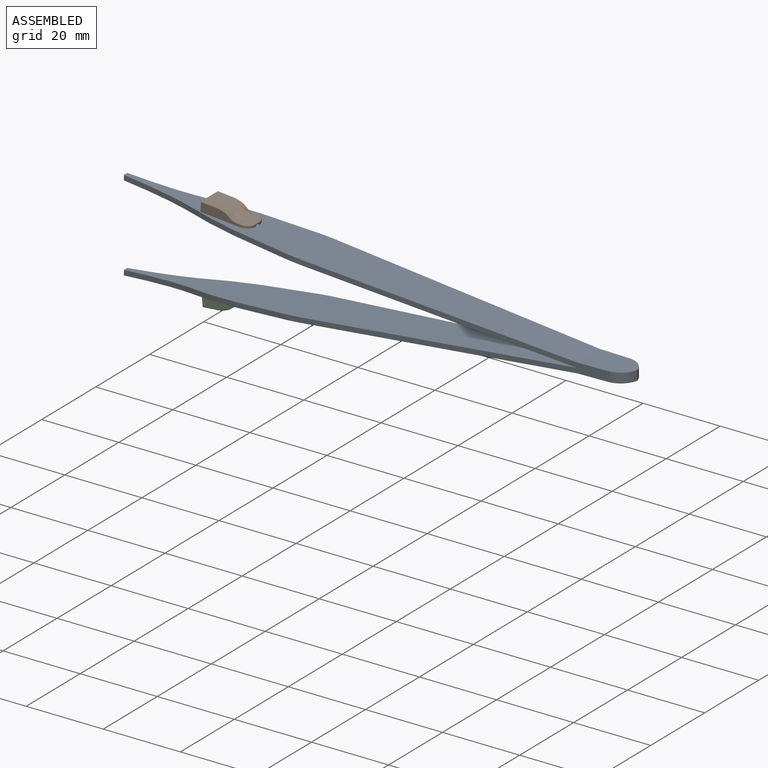
[diagram: assembled view]
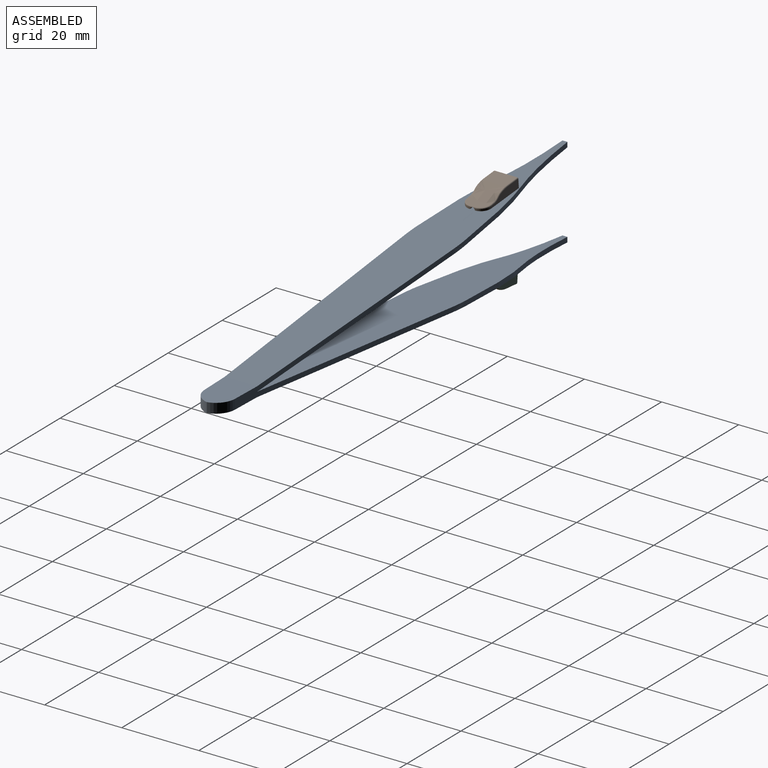
[diagram: assembled view, second angle]
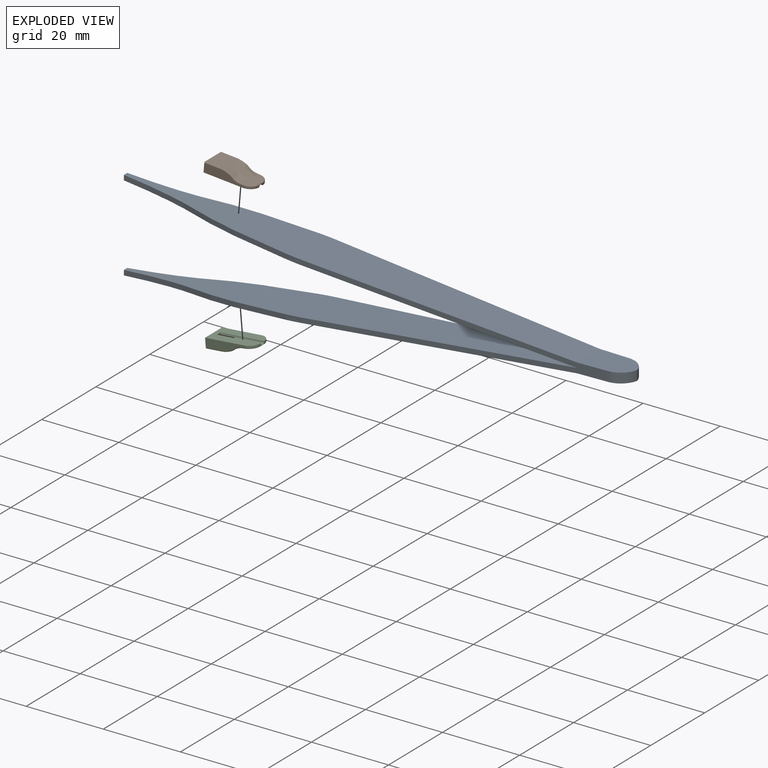
[diagram: exploded view]
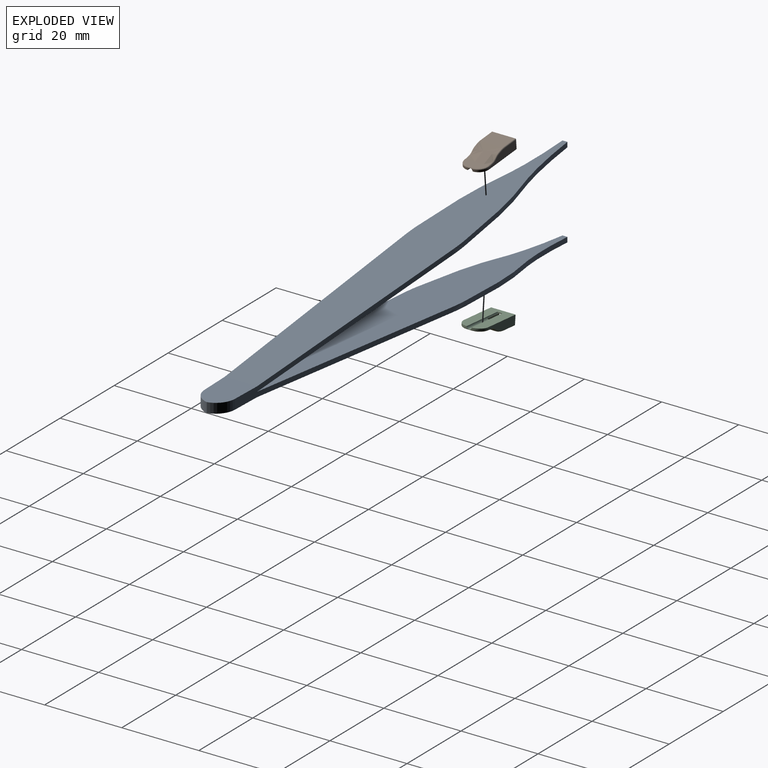
[diagram: exploded view, second angle]
ASSEMBLY  parts=3 mates=2
PART A: 20 faces, bbox 132.7x12.6x23.6 mm
  f0: plane 120.14x12.61mm, normal (0.09,0,1), area 1111.3mm2, adj f1,f4,f6,f7,f9,f11,f16,f17
  f1: plane 12.58x8.38mm, normal (0,0,1), area 91.4mm2, adj f0,f6,f11,f14,f15
  f2: plane 12.58x8.38mm, normal (0,0,-1), area 91.4mm2, adj f3,f6,f11,f14,f15
  f3: plane 120.14x12.61mm, normal (0.09,0,-1), area 1111.3mm2, adj f2,f5,f6,f8,f10,f11,f18,f19
  f4: plane 1.28x1.27mm, normal (-1,0,0), area 1.6mm2, adj f0,f7,f9,f12
  f5: plane 1.28x1.27mm, normal (-1,0,0), area 1.6mm2, adj f3,f8,f10,f13
  f6: plane 77.53x14.75mm, normal (0.03,1,0), area 197.7mm2, adj f0,f1,f2,f3,f12,f13,f15,f16
  f7: extruded ~45.71x5.57mm, area 58.8mm2, adj f0,f4,f12,f16
  f8: extruded ~45.71x5.57mm, area 58.8mm2, adj f3,f5,f13,f18
  f9: extruded ~45.71x5.57mm, area 58.8mm2, adj f0,f4,f12,f17
  f10: extruded ~45.71x5.57mm, area 58.8mm2, adj f3,f5,f13,f19
  f11: plane 77.53x14.75mm, normal (0.03,-1,0), area 197.7mm2, adj f0,f1,f2,f3,f12,f13,f14,f17
  f12: plane 120.08x12.61mm, normal (-0.09,0,-1), area 1110.9mm2, adj f4,f6,f7,f9,f11,f13,f16,f17
  f13: plane 120.08x12.61mm, normal (-0.09,0,1), area 1110.9mm2, adj f5,f6,f8,f10,f11,f12,f18,f19
  f14: cylinder r=5.08mm len=4.8mm, axis (0,0,-1), area 17mm2, adj f1,f2,f11,f15
  f15: cylinder r=5.08mm len=4.8mm, axis (0,0,1), area 17mm2, adj f1,f2,f6,f14
  f16: cylinder r=50.8mm len=4.67mm, axis (0,0,1), area 6mm2, adj f0,f6,f7,f12
  f17: cylinder r=50.8mm len=4.67mm, axis (0,0,1), area 6mm2, adj f0,f9,f11,f12
  f18: cylinder r=50.8mm len=4.67mm, axis (0,0,1), area 6mm2, adj f3,f6,f8,f13
  f19: cylinder r=50.8mm len=4.67mm, axis (0,0,1), area 6mm2, adj f3,f10,f11,f13
PART B: 21 faces, bbox 6.4x12.7x2.5 mm
  f0: plane 0.5x0.24mm, normal (0,-1,0), area 0mm2, adj f5,f11,f17
  f1: plane 6.35x2.54mm, normal (0,1,0), area 12.9mm2, adj f3,f4,f8,f9,f13,f14,f20
  f2: plane 0.5x0.24mm, normal (0,-1,0), area 0mm2, adj f5,f10,f17
  f3: plane 12.7x6.35mm, normal (0,0,-1), area 63.4mm2, adj f1,f5,f6,f8,f9,f10,f11
  f4: plane 5.84x3.9mm, normal (0,0,1), area 22.8mm2, adj f1,f7,f14,f20
  f5: cylinder r=0.64mm len=11.43mm, axis (0,-1,0), area 18.4mm2, adj f0,f2,f3,f6,f12,f13,f17
  f6: plane 1.27x0.39mm, normal (0,-1,0), area 0.4mm2, adj f3,f5,f13
  f7: extruded ~8.56x5.84mm, area 49.8mm2, adj f4,f15,f16,f17,f18,f19
  f8: plane 10.16x2.29mm, normal (1,0,0), area 17.8mm2, adj f1,f3,f11,f14,f15
  f9: plane 10.16x2.29mm, normal (-1,0,0), area 17.8mm2, adj f1,f3,f10,f19,f20
  f10: cylinder r=2.54mm len=2.54mm, axis (0,0,1), area 2.1mm2, adj f2,f3,f9,f18
  f11: cylinder r=2.54mm len=2.54mm, axis (0,0,-1), area 2.1mm2, adj f0,f3,f8,f16
  f12: plane 2.03x1.9mm, normal (0,1,0), area 3mm2, adj f5,f13
  f13: cylinder r=1.02mm len=5.08mm, axis (0,1,0), area 28.4mm2, adj f1,f5,f6,f12
  f14: cylinder r=0.25mm len=3.9mm, axis (0,1,0), area 1.6mm2, adj f1,f4,f8,f15
  f15: bspline ~8.46x2mm, area 2.6mm2, adj f7,f8,f14,f16
  f16: bspline ~3.11x3.1mm, area 1.5mm2, adj f7,f11,f15,f17
  f17: cylinder r=0.25mm len=1.27mm, axis (-1,0,0), area 0.4mm2, adj f0,f2,f5,f7,f16,f18
  f18: bspline ~3.11x3.1mm, area 1.5mm2, adj f7,f10,f17,f19
  f19: bspline ~9.18x2.02mm, area 2.6mm2, adj f7,f9,f18,f20
  f20: cylinder r=0.25mm len=3.9mm, axis (0,-1,0), area 1.6mm2, adj f1,f4,f9,f19
PART C: same geometry as B
PLACE A t=(28.59,0,-2.5)mm
PLACE B rot(axis=(0.04,0.04,1),90.1deg) t=(-69.96,0,6.28)mm
PLACE C rot(axis=(-0.71,0.71,-0.03),176.5deg) t=(-69.57,0,-11.25)mm
MATE fastened C.f3 <-> A.f3  axis (-0.09,0,1) through (-76.29,0,-11.84)mm
MATE fastened B.f3 <-> A.f0  axis (-0.09,0,-1) through (-82.62,0,7.39)mm
